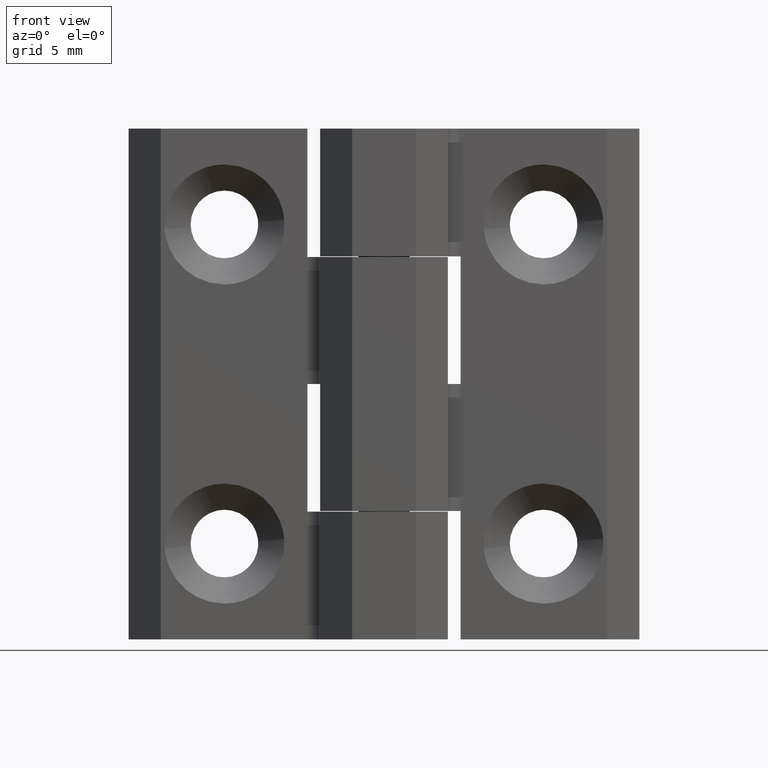
[diagram: clean part render]
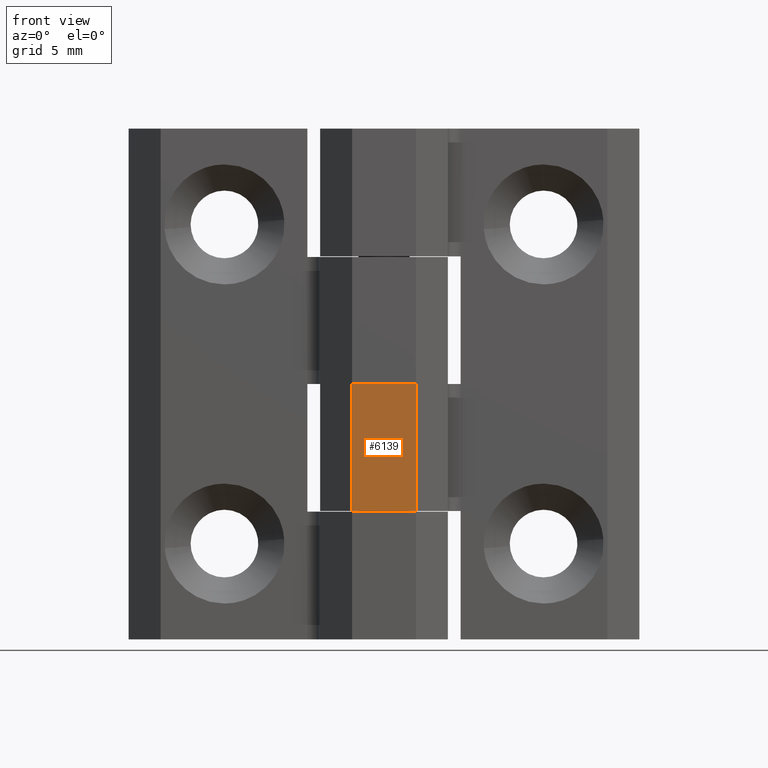
[diagram: same view with one face highlighted and labeled with its STEP entity id]
A machine part, front view. The second image highlights one B-rep face of the part: STEP entity #6139.
In plain terms, the highlighted face is a freeform B-spline surface patch.
Its self-contained STEP definition (entity closure, byte-faithful):
#5382=CARTESIAN_POINT('',(2.500000712457705,-3.600000166240840,10.050000477349499));
#5383=VERTEX_POINT('',#5382);
#5389=CARTESIAN_POINT('',(-2.499999525029550,-3.600000166241270,10.050000477349499));
#5390=VERTEX_POINT('',#5389);
#5391=CARTESIAN_POINT('',(-2.499999525029550,-3.600000166241270,10.050000477349499));
#5392=CARTESIAN_POINT('',(2.500000712457705,-3.600000166240840,10.050000477349499));
#5393=QUASI_UNIFORM_CURVE('',1,(#5391,#5392),.UNSPECIFIED.,.F.,.U.);
#5394=EDGE_CURVE('',#5390,#5383,#5393,.T.);
#5461=CARTESIAN_POINT('',(-2.499999525029550,-3.600000166241270,20.000000949949399));
#5462=VERTEX_POINT('',#5461);
#5468=CARTESIAN_POINT('',(2.500000712457705,-3.600000166240840,20.000000949949200));
#5469=VERTEX_POINT('',#5468);
#5470=CARTESIAN_POINT('',(-2.499999525029550,-3.600000166241270,20.000000949949399));
#5471=CARTESIAN_POINT('',(2.500000712457705,-3.600000166240840,20.000000949949200));
#5472=QUASI_UNIFORM_CURVE('',1,(#5470,#5471),.UNSPECIFIED.,.F.,.U.);
#5473=EDGE_CURVE('',#5462,#5469,#5472,.T.);
#6115=CARTESIAN_POINT('',(-2.499999525029550,-3.600000166241270,20.000000949949399));
#6116=CARTESIAN_POINT('',(-2.499999525029550,-3.600000166241270,10.050000477349499));
#6117=QUASI_UNIFORM_CURVE('',1,(#6115,#6116),.UNSPECIFIED.,.F.,.U.);
#6118=EDGE_CURVE('',#5462,#5390,#6117,.T.);
#6124=CARTESIAN_POINT('',(-2.749749527201068,-3.600000166240840,9.552997670511006));
#6125=CARTESIAN_POINT('',(2.749750848739680,-3.600000166240840,9.552997670511006));
#6126=CARTESIAN_POINT('',(-2.749749527201068,-3.600000166240840,20.497002244468970));
#6127=CARTESIAN_POINT('',(2.749750848739680,-3.600000166240840,20.497002244468970));
#6128=B_SPLINE_SURFACE_WITH_KNOTS('',1,1,((#6124,#6126),(#6125,#6127)),.UNSPECIFIED.,.F.,.F.,.U.,(2,2),(2,2),(0.0,5.499500375940748),(0.0,10.944004573957960),.UNSPECIFIED.);
#6129=ORIENTED_EDGE('',*,*,#6118,.T.);
#6130=ORIENTED_EDGE('',*,*,#5394,.T.);
#6131=CARTESIAN_POINT('',(2.500000712457705,-3.600000166240840,20.000000949949200));
#6132=CARTESIAN_POINT('',(2.500000712457705,-3.600000166240840,10.050000477349499));
#6133=QUASI_UNIFORM_CURVE('',1,(#6131,#6132),.UNSPECIFIED.,.F.,.U.);
#6134=EDGE_CURVE('',#5469,#5383,#6133,.T.);
#6135=ORIENTED_EDGE('',*,*,#6134,.F.);
#6136=ORIENTED_EDGE('',*,*,#5473,.F.);
#6137=EDGE_LOOP('',(#6129,#6130,#6135,#6136));
#6138=FACE_OUTER_BOUND('',#6137,.T.);
#6139=ADVANCED_FACE('',(#6138),#6128,.T.);